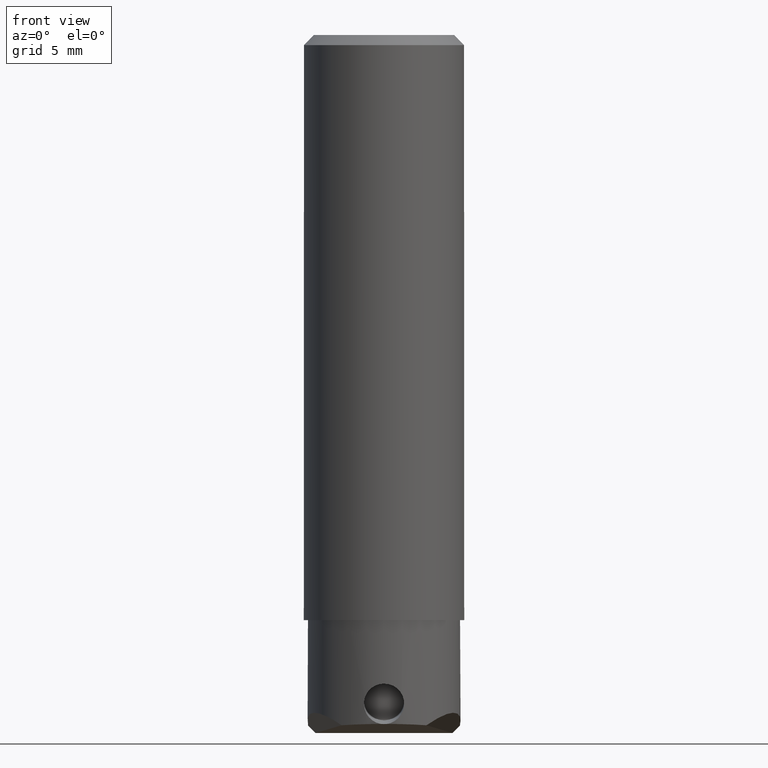
[diagram: clean part render]
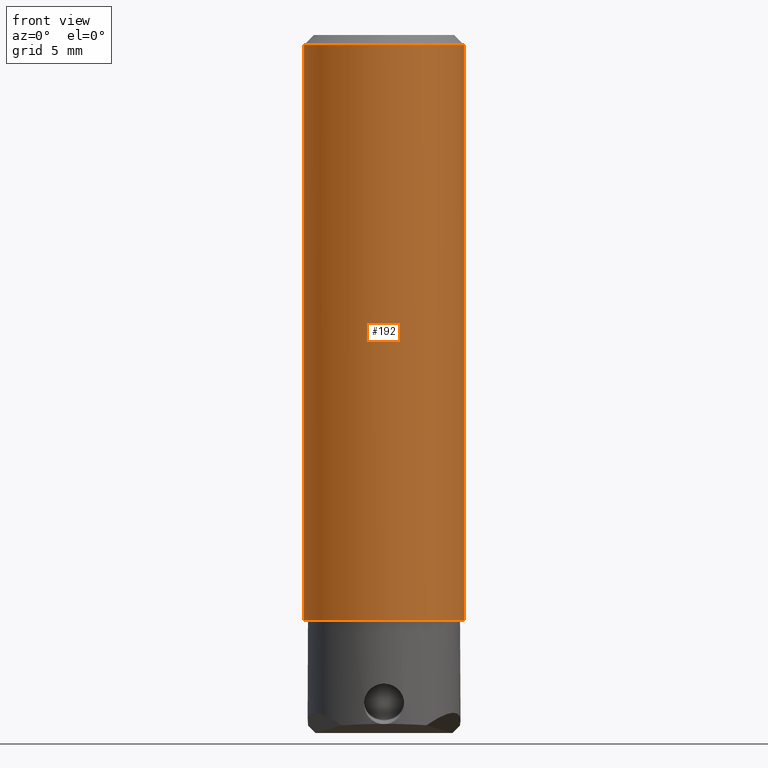
[diagram: same view with one face highlighted and labeled with its STEP entity id]
A machine part, front view. The second image highlights one B-rep face of the part: STEP entity #192.
In plain terms, the highlighted cylindrical surface (partial cylindrical patch) has radius 4 mm, axis along (0, 0, -1).
Its self-contained STEP definition (entity closure, byte-faithful):
#55=CYLINDRICAL_SURFACE('',#1230,4.);
#83=ELLIPSE('',#1223,4.88309835506778,4.);
#84=ELLIPSE('',#1224,4.88309835506778,4.);
#103=FACE_OUTER_BOUND('',#283,.T.);
#164=B_SPLINE_CURVE_WITH_KNOTS('',3,(#1764,#1765,#1766,#1767,#1768,#1769,
#1770,#1771,#1772,#1773,#1774,#1775,#1776),.UNSPECIFIED.,.F.,.F.,(4,3,3,
3,4),(0.,0.172592577784538,0.453177242106368,0.726326720718897,1.),
 .UNSPECIFIED.);
#165=B_SPLINE_CURVE_WITH_KNOTS('',3,(#1778,#1779,#1780,#1781),
 .UNSPECIFIED.,.F.,.F.,(4,4),(0.,1.),.UNSPECIFIED.);
#166=B_SPLINE_CURVE_WITH_KNOTS('',3,(#1787,#1788,#1789,#1790),
 .UNSPECIFIED.,.F.,.F.,(4,4),(0.,1.),.UNSPECIFIED.);
#167=B_SPLINE_CURVE_WITH_KNOTS('',3,(#1792,#1793,#1794,#1795,#1796,#1797,
#1798,#1799,#1800,#1801,#1802,#1803,#1804),.UNSPECIFIED.,.F.,.F.,(4,3,3,
3,4),(0.,0.172592577784464,0.453177242106319,0.726326720718873,1.),
 .UNSPECIFIED.);
#192=ADVANCED_FACE('',(#103),#55,.T.);
#283=EDGE_LOOP('',(#501,#502,#503,#504,#505,#506,#507,#508,#509,#510,#511,
#512));
#347=LINE('',#1739,#417);
#348=LINE('',#1751,#418);
#417=VECTOR('',#1386,1.);
#418=VECTOR('',#1387,1.);
#501=ORIENTED_EDGE('',*,*,#942,.F.);
#502=ORIENTED_EDGE('',*,*,#947,.T.);
#503=ORIENTED_EDGE('',*,*,#948,.T.);
#504=ORIENTED_EDGE('',*,*,#939,.F.);
#505=ORIENTED_EDGE('',*,*,#946,.F.);
#506=ORIENTED_EDGE('',*,*,#949,.T.);
#507=ORIENTED_EDGE('',*,*,#950,.T.);
#508=ORIENTED_EDGE('',*,*,#951,.T.);
#509=ORIENTED_EDGE('',*,*,#952,.T.);
#510=ORIENTED_EDGE('',*,*,#953,.T.);
#511=ORIENTED_EDGE('',*,*,#954,.F.);
#512=ORIENTED_EDGE('',*,*,#944,.F.);
#829=VERTEX_POINT('',#1740);
#830=VERTEX_POINT('',#1741);
#831=VERTEX_POINT('',#1750);
#832=VERTEX_POINT('',#1752);
#833=VERTEX_POINT('',#1756);
#834=VERTEX_POINT('',#1758);
#835=VERTEX_POINT('',#1762);
#836=VERTEX_POINT('',#1777);
#837=VERTEX_POINT('',#1782);
#838=VERTEX_POINT('',#1784);
#839=VERTEX_POINT('',#1786);
#840=VERTEX_POINT('',#1791);
#939=EDGE_CURVE('',#829,#830,#347,.T.);
#942=EDGE_CURVE('',#831,#832,#348,.T.);
#944=EDGE_CURVE('',#832,#833,#83,.T.);
#946=EDGE_CURVE('',#834,#829,#84,.T.);
#947=EDGE_CURVE('',#831,#835,#1107,.T.);
#948=EDGE_CURVE('',#835,#830,#1108,.T.);
#949=EDGE_CURVE('',#834,#836,#164,.T.);
#950=EDGE_CURVE('',#836,#837,#165,.T.);
#951=EDGE_CURVE('',#837,#838,#1109,.T.);
#952=EDGE_CURVE('',#838,#839,#1110,.T.);
#953=EDGE_CURVE('',#839,#840,#166,.T.);
#954=EDGE_CURVE('',#833,#840,#167,.T.);
#1107=CIRCLE('',#1226,4.);
#1108=CIRCLE('',#1227,4.);
#1109=CIRCLE('',#1228,4.);
#1110=CIRCLE('',#1229,4.);
#1223=AXIS2_PLACEMENT_3D('',#1755,#1391,#1392);
#1224=AXIS2_PLACEMENT_3D('',#1759,#1394,#1395);
#1226=AXIS2_PLACEMENT_3D('',#1761,#1398,#1399);
#1227=AXIS2_PLACEMENT_3D('',#1763,#1400,#1401);
#1228=AXIS2_PLACEMENT_3D('',#1783,#1402,#1403);
#1229=AXIS2_PLACEMENT_3D('',#1785,#1404,#1405);
#1230=AXIS2_PLACEMENT_3D('',#1805,#1406,#1407);
#1386=DIRECTION('',(0.,2.577174466299E-14,1.));
#1387=DIRECTION('',(1.32365083133E-14,-3.338054546825E-14,-1.));
#1391=DIRECTION('',(0.,0.573576436356306,-0.819152044285309));
#1392=DIRECTION('',(0.,-0.819152044285309,-0.573576436356306));
#1394=DIRECTION('',(0.,0.573576436356306,-0.819152044285309));
#1395=DIRECTION('',(0.,-0.819152044285309,-0.573576436356306));
#1398=DIRECTION('',(0.,0.,-1.));
#1399=DIRECTION('',(0.661437827766121,0.750000000000024,0.));
#1400=DIRECTION('',(0.,0.,-1.));
#1401=DIRECTION('',(0.,-1.,0.));
#1402=DIRECTION('',(0.,0.,1.));
#1403=DIRECTION('',(-0.838756078077779,0.544507338322986,0.));
#1404=DIRECTION('',(0.,0.,1.));
#1405=DIRECTION('',(0.,-1.,0.));
#1406=DIRECTION('',(0.,0.,-1.));
#1407=DIRECTION('',(0.,1.,0.));
#1739=CARTESIAN_POINT('',(-2.645751311065,2.999999999999,-25.83049845931));
#1740=CARTESIAN_POINT('',(-2.64575131106501,2.999999999999,-25.8304984593107));
#1741=CARTESIAN_POINT('',(-2.64575131106494,2.99999999999983,-0.500000000000094));
#1750=CARTESIAN_POINT('',(2.645751311065,3.,-0.500000000000135));
#1751=CARTESIAN_POINT('',(2.645751311065,3.,-0.5));
#1752=CARTESIAN_POINT('',(2.64575131106518,2.99999999999908,-25.8304984593106));
#1755=CARTESIAN_POINT('',(0.,0.,-27.9311210739685));
#1756=CARTESIAN_POINT('',(3.34277259428594,2.196786603856,-26.39291453408));
#1758=CARTESIAN_POINT('',(-3.34277259428601,2.19678660385575,-26.3929145340795));
#1759=CARTESIAN_POINT('',(0.,0.,-27.9311210739685));
#1761=CARTESIAN_POINT('',(0.,0.,-0.5));
#1762=CARTESIAN_POINT('',(0.,-4.,-0.5));
#1763=CARTESIAN_POINT('',(0.,0.,-0.5));
#1764=CARTESIAN_POINT('',(-3.34277259428601,2.19678660385575,-26.3929145340795));
#1765=CARTESIAN_POINT('',(-3.35771788755463,2.1740448788906,-26.4088384613322));
#1766=CARTESIAN_POINT('',(-3.37177910779346,2.15213603631807,-26.4270220120214));
#1767=CARTESIAN_POINT('',(-3.38465633367066,2.13168982334277,-26.4472766098476));
#1768=CARTESIAN_POINT('',(-3.4054348762249,2.0986980508576,-26.479959194347));
#1769=CARTESIAN_POINT('',(-3.42344711131713,2.06900016760705,-26.5187307622829));
#1770=CARTESIAN_POINT('',(-3.43746821916153,2.04543693186919,-26.5615856181144));
#1771=CARTESIAN_POINT('',(-3.4511041889143,2.02252094168036,-26.603263317506));
#1772=CARTESIAN_POINT('',(-3.46127357599419,2.00492540612247,-26.6498213891138));
#1773=CARTESIAN_POINT('',(-3.46718753985585,1.99464547312757,-26.6978574267634));
#1774=CARTESIAN_POINT('',(-3.47310756477623,1.98435500451242,-26.7459426952252));
#1775=CARTESIAN_POINT('',(-3.47491088287348,1.98116607615582,-26.7967889363363));
#1776=CARTESIAN_POINT('',(-3.47244570933281,1.98547747298633,-26.8460684276));
#1777=CARTESIAN_POINT('',(-3.47244570933281,1.98547747298633,-26.8460684276));
#1778=CARTESIAN_POINT('',(-3.472445709333,1.985477472986,-26.8460684276));
#1779=CARTESIAN_POINT('',(-3.435740103055,2.049672724135,-27.57982350582));
#1780=CARTESIAN_POINT('',(-3.396683952386,2.113857075227,-28.31345399582));
#1781=CARTESIAN_POINT('',(-3.355024312311,2.178029353292,-29.04694649049));
#1782=CARTESIAN_POINT('',(-3.355024312311,2.178029353292,-29.04694649049));
#1783=CARTESIAN_POINT('',(0.,0.,-29.04694649049));
#1784=CARTESIAN_POINT('',(0.,-4.,-29.04694649049));
#1785=CARTESIAN_POINT('',(0.,0.,-29.04694649049));
#1786=CARTESIAN_POINT('',(3.355024312311,2.178029353292,-29.04694649049));
#1787=CARTESIAN_POINT('',(3.355024312311,2.178029353292,-29.04694649049));
#1788=CARTESIAN_POINT('',(3.396683952386,2.113857075227,-28.31345399582));
#1789=CARTESIAN_POINT('',(3.435740103055,2.049672724135,-27.57982350583));
#1790=CARTESIAN_POINT('',(3.472445709333,1.985477472986,-26.8460684276));
#1791=CARTESIAN_POINT('',(3.47244570933281,1.98547747298633,-26.8460684276));
#1792=CARTESIAN_POINT('',(3.34277259428594,2.196786603856,-26.39291453408));
#1793=CARTESIAN_POINT('',(3.35771788755459,2.17404487889083,-26.4088384613325));
#1794=CARTESIAN_POINT('',(3.37177910779347,2.15213603631806,-26.4270220120214));
#1795=CARTESIAN_POINT('',(3.38465633367066,2.13168982334277,-26.4472766098476));
#1796=CARTESIAN_POINT('',(3.4054348762249,2.0986980508576,-26.479959194347));
#1797=CARTESIAN_POINT('',(3.42344711131713,2.06900016760705,-26.5187307622829));
#1798=CARTESIAN_POINT('',(3.43746821916153,2.04543693186919,-26.5615856181144));
#1799=CARTESIAN_POINT('',(3.4511041889143,2.02252094168036,-26.603263317506));
#1800=CARTESIAN_POINT('',(3.46127357599419,2.00492540612247,-26.6498213891138));
#1801=CARTESIAN_POINT('',(3.46718753985585,1.99464547312757,-26.6978574267634));
#1802=CARTESIAN_POINT('',(3.47310756477623,1.98435500451242,-26.7459426952252));
#1803=CARTESIAN_POINT('',(3.47491088287348,1.98116607615582,-26.7967889363363));
#1804=CARTESIAN_POINT('',(3.47244570933281,1.98547747298633,-26.8460684276));
#1805=CARTESIAN_POINT('',(0.,0.,0.07093892980989));